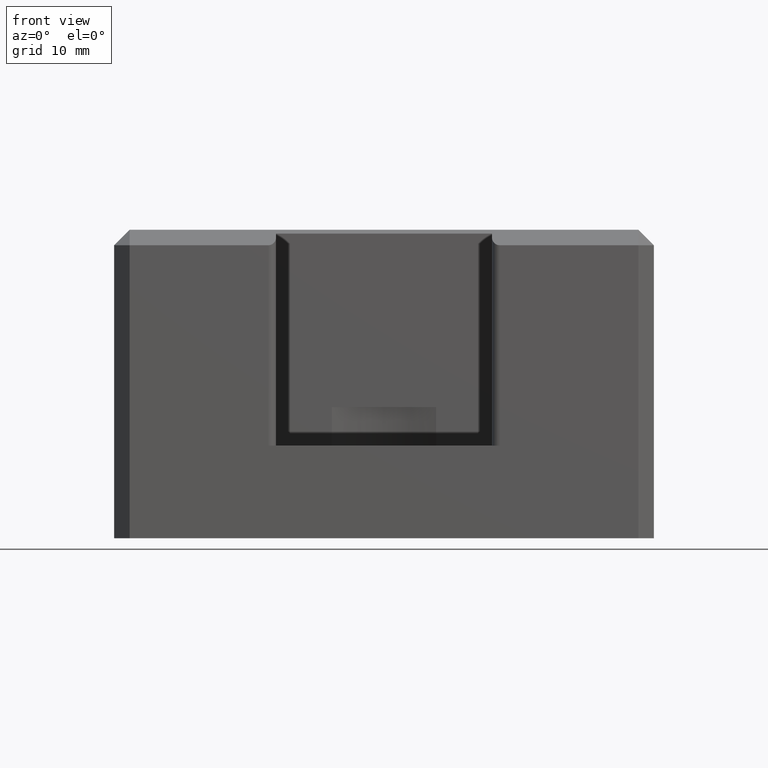
[diagram: clean part render]
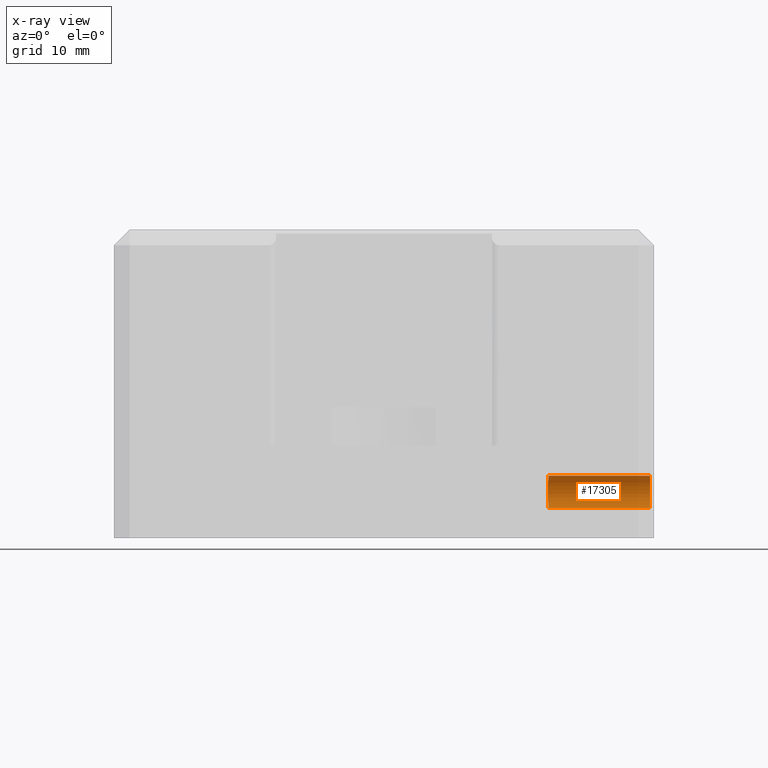
[diagram: x-ray — body ghosted, one internal face saturated and labeled with its STEP entity id]
A machine part, front view, then the same camera in x-ray: the body is ghosted and one INTERNAL B-rep face — a face not visible from any outside direction — is saturated and labeled: STEP entity #17305.
In plain terms, the highlighted cylindrical surface (edge-blend (fillet) strip) has radius 2.1 mm, axis along (1, 0, 0).
Its self-contained STEP definition (entity closure, byte-faithful):
#708 = CYLINDRICAL_SURFACE ( 'NONE', #21453, 2.099999999999992500 ) ;
#858 = AXIS2_PLACEMENT_3D ( 'NONE', #1180, #22504, #10832 ) ;
#922 = CARTESIAN_POINT ( 'NONE',  ( 21.35000000000000100, 2.614620931948651000E-015, -11.90000000000000700 ) ) ;
#1180 = CARTESIAN_POINT ( 'NONE',  ( 34.50000000000001400, 4.857225732735061400E-015, -14.00000000000000000 ) ) ;
#1182 = LINE ( 'NONE', #13923, #14909 ) ;
#1269 = CARTESIAN_POINT ( 'NONE',  ( 21.29162100673998700, 1.580759743459305000, -12.61077908195565000 ) ) ;
#1832 = DIRECTION ( 'NONE',  ( 1.000000000000000000, -0.0000000000000000000, -0.0000000000000000000 ) ) ;
#1962 = B_SPLINE_CURVE_WITH_KNOTS ( 'NONE', 3,
 ( #922, #6790, #12689, #7040, #2873, #1269, #22759, #14735, #10742, #9024, #16806, #16639, #16549, #4827, #24359, #6955, #20642, #12853, #14645, #18512, #20466, #22679, #8762, #10998, #6877, #5159 ),
 .UNSPECIFIED., .F., .F.,
 ( 4, 2, 2, 2, 2, 2, 2, 2, 2, 2, 2, 2, 4 ),
 ( 0.006569526632063545600, 0.007390525099776895300, 0.008211523567490244100, 0.008622022801346919400, 0.009032522035203596400, 0.009443021269060273400, 0.009853520502916948700, 0.01026401973677362600, 0.01067451897063030300, 0.01108501820448698000, 0.01149551743834365700, 0.01231651590605701100, 0.01313751437377036300 ),
 .UNSPECIFIED. ) ;
#2873 = CARTESIAN_POINT ( 'NONE',  ( 21.31186534990052600, 1.290194230525409300, -12.32061220969869500 ) ) ;
#3545 = CARTESIAN_POINT ( 'NONE',  ( 21.35000000000000100, 2.614620931948651000E-015, -11.90000000000000700 ) ) ;
#4361 = VERTEX_POINT ( 'NONE', #3545 ) ;
#4827 = CARTESIAN_POINT ( 'NONE',  ( 21.24645981888101400, 2.100105991646988600, -14.13710338268377100 ) ) ;
#4957 = VECTOR ( 'NONE', #1832, 1000.000000000000000 ) ;
#5159 = CARTESIAN_POINT ( 'NONE',  ( 21.35000000000000100, 4.693961931060656500E-015, -16.09999999999999400 ) ) ;
#5569 = CARTESIAN_POINT ( 'NONE',  ( 35.00000000000000700, 4.857225732735061400E-015, -16.09999999999999400 ) ) ;
#6790 = CARTESIAN_POINT ( 'NONE',  ( 21.35000000000000900, 0.2741314324692076800, -11.90000000000001300 ) ) ;
#6877 = CARTESIAN_POINT ( 'NONE',  ( 21.35000000000000500, 0.2776193433158162800, -16.09999999999999400 ) ) ;
#6955 = CARTESIAN_POINT ( 'NONE',  ( 21.25296624956325800, 2.033381272392055900, -14.54230049559795600 ) ) ;
#7040 = CARTESIAN_POINT ( 'NONE',  ( 21.32536884060866800, 1.055986267122294600, -12.16432237429886800 ) ) ;
#8762 = CARTESIAN_POINT ( 'NONE',  ( 21.32524166881356500, 1.058504964636916000, -15.83421857214792400 ) ) ;
#9019 = ORIENTED_EDGE ( 'NONE', *, *, #18578, .T. ) ;
#9024 = CARTESIAN_POINT ( 'NONE',  ( 21.25692608876072500, 1.992084801077218700, -13.32138169930118100 ) ) ;
#9212 = EDGE_CURVE ( 'NONE', #14135, #12948, #15041, .T. ) ;
#10088 = ORIENTED_EDGE ( 'NONE', *, *, #9212, .T. ) ;
#10742 = CARTESIAN_POINT ( 'NONE',  ( 21.26655381212690800, 1.886530559951196300, -13.06730117449605500 ) ) ;
#10832 = DIRECTION ( 'NONE',  ( 0.0000000000000000000, 0.0000000000000000000, 1.000000000000000000 ) ) ;
#10998 = CARTESIAN_POINT ( 'NONE',  ( 21.34432184375812000, 0.5534347509263943800, -16.04413808414216500 ) ) ;
#12689 = CARTESIAN_POINT ( 'NONE',  ( 21.34439937890371300, 0.5505255109519411300, -11.95506943794129700 ) ) ;
#12806 = CARTESIAN_POINT ( 'NONE',  ( 34.50000000000001400, 4.857225732735061400E-015, -16.09999999999999400 ) ) ;
#12853 = CARTESIAN_POINT ( 'NONE',  ( 21.26643774069825100, 1.887834549225679400, -14.93007246084019000 ) ) ;
#12948 = VERTEX_POINT ( 'NONE', #12806 ) ;
#13264 = CARTESIAN_POINT ( 'NONE',  ( 21.35000000000000100, 4.693961931060656500E-015, -16.09999999999999400 ) ) ;
#13923 = CARTESIAN_POINT ( 'NONE',  ( 35.00000000000000700, 5.114401560556004300E-015, -11.90000000000000700 ) ) ;
#14135 = VERTEX_POINT ( 'NONE', #13264 ) ;
#14491 = ORIENTED_EDGE ( 'NONE', *, *, #19737, .T. ) ;
#14645 = CARTESIAN_POINT ( 'NONE',  ( 21.27212926867017400, 1.823415286180595500, -15.05069923784876100 ) ) ;
#14735 = CARTESIAN_POINT ( 'NONE',  ( 21.27225385342274300, 1.821968781040129300, -12.94678984432239600 ) ) ;
#14909 = VECTOR ( 'NONE', #17874, 1000.000000000000000 ) ;
#15041 = LINE ( 'NONE', #5569, #4957 ) ;
#15152 = ORIENTED_EDGE ( 'NONE', *, *, #22439, .F. ) ;
#16549 = CARTESIAN_POINT ( 'NONE',  ( 21.24648089389528100, 2.099892767933551500, -13.85966868889916300 ) ) ;
#16639 = CARTESIAN_POINT ( 'NONE',  ( 21.24784893774298700, 2.086178242725222900, -13.72324707837396800 ) ) ;
#16806 = CARTESIAN_POINT ( 'NONE',  ( 21.25304032306961200, 2.032609447863350300, -13.45481134228114300 ) ) ;
#16829 = DIRECTION ( 'NONE',  ( 0.0000000000000000000, 0.0000000000000000000, -1.000000000000000000 ) ) ;
#16997 = CARTESIAN_POINT ( 'NONE',  ( 35.00000000000000700, 4.857225732735061400E-015, -14.00000000000000000 ) ) ;
#17305 = ADVANCED_FACE ( 'NONE', ( #24476 ), #708, .F. ) ;
#17874 = DIRECTION ( 'NONE',  ( 1.000000000000000000, -0.0000000000000000000, -0.0000000000000000000 ) ) ;
#18512 = CARTESIAN_POINT ( 'NONE',  ( 21.28462404998542800, 1.671258800926139800, -15.27894730721009100 ) ) ;
#18578 = EDGE_CURVE ( 'NONE', #12948, #22663, #21127, .T. ) ;
#18875 = DIRECTION ( 'NONE',  ( 1.000000000000000000, -0.0000000000000000000, -0.0000000000000000000 ) ) ;
#19737 = EDGE_CURVE ( 'NONE', #4361, #14135, #1962, .T. ) ;
#20223 = CARTESIAN_POINT ( 'NONE',  ( 34.50000000000001400, 5.114401560556004300E-015, -11.90000000000000700 ) ) ;
#20466 = CARTESIAN_POINT ( 'NONE',  ( 21.29147635349148600, 1.582699947314071900, -15.38701288971192900 ) ) ;
#20642 = CARTESIAN_POINT ( 'NONE',  ( 21.25683024077117300, 1.993103504407459000, -14.67564227841525900 ) ) ;
#21127 = CIRCLE ( 'NONE', #858, 2.099999999999992500 ) ;
#21453 = AXIS2_PLACEMENT_3D ( 'NONE', #16997, #18875, #16829 ) ;
#21673 = EDGE_LOOP ( 'NONE', ( #15152, #14491, #10088, #9019 ) ) ;
#22439 = EDGE_CURVE ( 'NONE', #4361, #22663, #1182, .T. ) ;
#22504 = DIRECTION ( 'NONE',  ( 1.000000000000000000, 0.0000000000000000000, 0.0000000000000000000 ) ) ;
#22663 = VERTEX_POINT ( 'NONE', #20223 ) ;
#22679 = CARTESIAN_POINT ( 'NONE',  ( 21.31172502076130500, 1.292476064581529200, -15.67764154106408500 ) ) ;
#22759 = CARTESIAN_POINT ( 'NONE',  ( 21.28476623831047100, 1.669455127885290700, -12.71869541205659900 ) ) ;
#24359 = CARTESIAN_POINT ( 'NONE',  ( 21.24781060126183600, 2.086566187997525500, -14.27380790628832800 ) ) ;
#24476 = FACE_OUTER_BOUND ( 'NONE', #21673, .T. ) ;